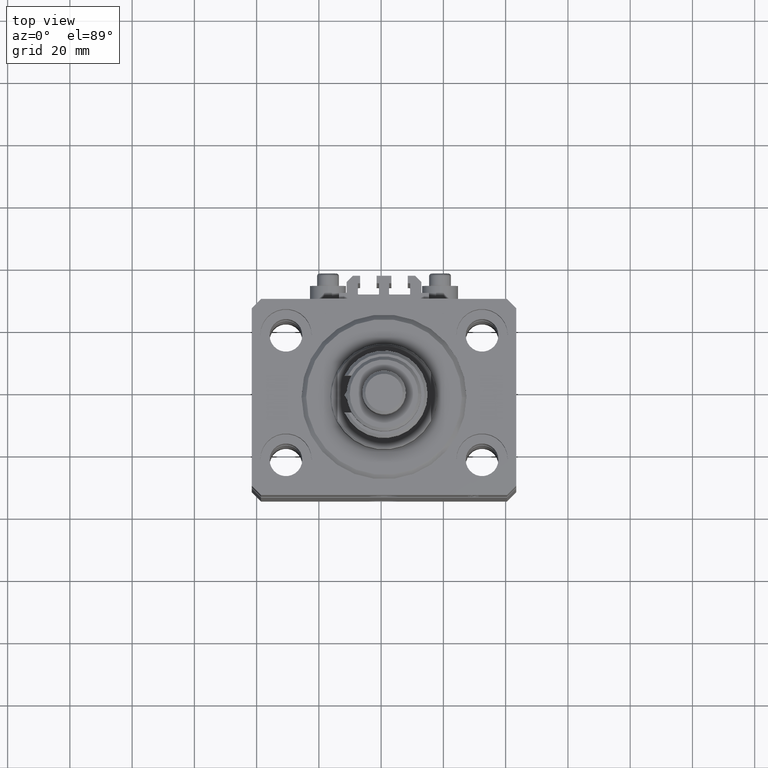
[diagram: clean part render]
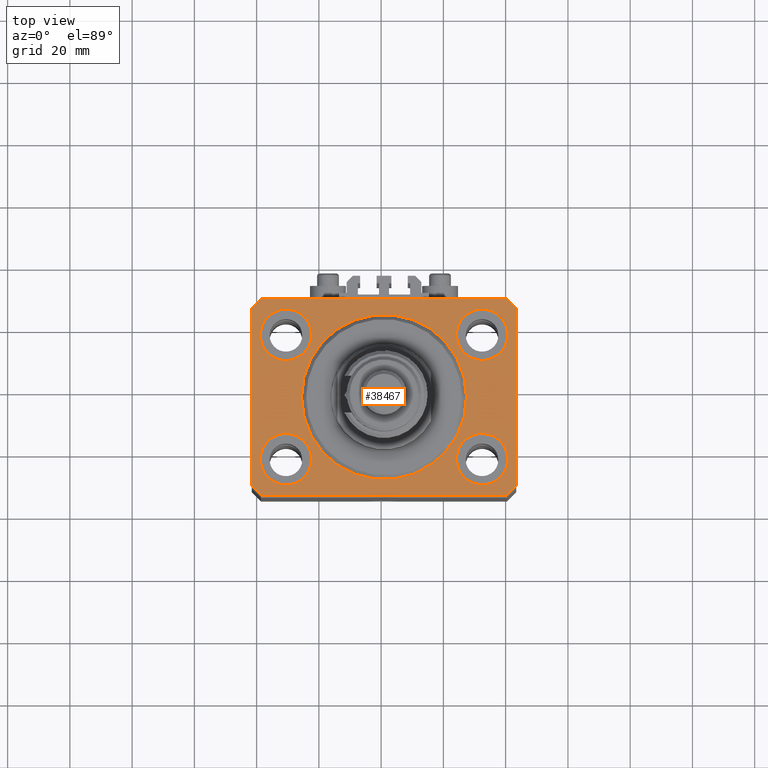
[diagram: same view with one face highlighted and labeled with its STEP entity id]
A machine part, top view. The second image highlights one B-rep face of the part: STEP entity #38467.
In plain terms, the highlighted planar face has unit normal (0, 0, 1).
Its self-contained STEP definition (entity closure, byte-faithful):
#163 = AXIS2_PLACEMENT_3D ( 'NONE', #16894, #17919, #6056 ) ;
#414 = VERTEX_POINT ( 'NONE', #25311 ) ;
#531 = AXIS2_PLACEMENT_3D ( 'NONE', #36931, #28963, #1654 ) ;
#786 = DIRECTION ( 'NONE',  ( -0.7071067811865356934, 0.7071067811865594521, 0.000000000000000000 ) ) ;
#1263 = VERTEX_POINT ( 'NONE', #35939 ) ;
#1654 = DIRECTION ( 'NONE',  ( 1.000000000000000000, 0.000000000000000000, 0.000000000000000000 ) ) ;
#1781 = EDGE_CURVE ( 'NONE', #37832, #1263, #8713, .T. ) ;
#2118 = DIRECTION ( 'NONE',  ( 1.000000000000000000, 0.000000000000000000, 0.000000000000000000 ) ) ;
#2919 = CARTESIAN_POINT ( 'NONE',  ( -31.50000000000000000, -20.00000000000000000, 0.000000000000000000 ) ) ;
#3328 = DIRECTION ( 'NONE',  ( 1.000000000000000000, 0.000000000000000000, 0.000000000000000000 ) ) ;
#3447 = FACE_BOUND ( 'NONE', #23190, .T. ) ;
#3658 = AXIS2_PLACEMENT_3D ( 'NONE', #2919, #42575, #7302 ) ;
#4058 = CARTESIAN_POINT ( 'NONE',  ( -39.75000000000000000, -20.00000000000000000, 0.000000000000000000 ) ) ;
#4536 = CARTESIAN_POINT ( 'NONE',  ( 23.25000000000000355, 20.00000000000001066, 0.000000000000000000 ) ) ;
#4848 = EDGE_CURVE ( 'NONE', #29776, #23181, #41629, .T. ) ;
#4857 = DIRECTION ( 'NONE',  ( 8.886653596232072440E-15, 1.000000000000000000, 0.000000000000000000 ) ) ;
#5062 = VECTOR ( 'NONE', #7144, 1000.000000000000000 ) ;
#5256 = EDGE_CURVE ( 'NONE', #414, #44710, #22698, .T. ) ;
#5568 = EDGE_CURVE ( 'NONE', #11366, #45595, #7118, .T. ) ;
#6056 = DIRECTION ( 'NONE',  ( 1.000000000000000000, 0.000000000000000000, 0.000000000000000000 ) ) ;
#6415 = EDGE_CURVE ( 'NONE', #44710, #414, #49097, .T. ) ;
#6562 = FACE_OUTER_BOUND ( 'NONE', #28540, .T. ) ;
#6627 = LINE ( 'NONE', #9986, #5062 ) ;
#7118 = CIRCLE ( 'NONE', #531, 8.249999999999992895 ) ;
#7144 = DIRECTION ( 'NONE',  ( 0.7071067811865483499, 0.7071067811865466846, 0.000000000000000000 ) ) ;
#7206 = DIRECTION ( 'NONE',  ( 0.000000000000000000, 0.000000000000000000, 1.000000000000000000 ) ) ;
#7302 = DIRECTION ( 'NONE',  ( 1.000000000000000000, 0.000000000000000000, 0.000000000000000000 ) ) ;
#7444 = VERTEX_POINT ( 'NONE', #33965 ) ;
#7478 = CIRCLE ( 'NONE', #18182, 8.250000000000000000 ) ;
#8480 = ORIENTED_EDGE ( 'NONE', *, *, #41681, .T. ) ;
#8674 = VECTOR ( 'NONE', #786, 1000.000000000000114 ) ;
#8713 = LINE ( 'NONE', #43997, #48064 ) ;
#9612 = LINE ( 'NONE', #37923, #19300 ) ;
#9857 = CARTESIAN_POINT ( 'NONE',  ( -39.50000000000000711, 31.50000000000000000, 0.000000000000000000 ) ) ;
#9986 = CARTESIAN_POINT ( 'NONE',  ( 39.50000000000000711, -31.50000000000000000, 0.000000000000000000 ) ) ;
#10422 = FACE_BOUND ( 'NONE', #43550, .T. ) ;
#10889 = AXIS2_PLACEMENT_3D ( 'NONE', #39827, #31844, #16895 ) ;
#11171 = AXIS2_PLACEMENT_3D ( 'NONE', #12039, #39599, #47821 ) ;
#11179 = FACE_BOUND ( 'NONE', #12356, .T. ) ;
#11366 = VERTEX_POINT ( 'NONE', #33105 ) ;
#11921 = VERTEX_POINT ( 'NONE', #4058 ) ;
#11953 = CARTESIAN_POINT ( 'NONE',  ( 42.50000000000000711, -28.50000000000000355, 0.000000000000000000 ) ) ;
#12039 = CARTESIAN_POINT ( 'NONE',  ( 31.50000000000000000, -20.00000000000000000, 0.000000000000000000 ) ) ;
#12356 = EDGE_LOOP ( 'NONE', ( #34864, #29959 ) ) ;
#12640 = CIRCLE ( 'NONE', #41434, 26.50000000000000355 ) ;
#13139 = CARTESIAN_POINT ( 'NONE',  ( 42.50000000000051870, 28.49999999999995381, 0.000000000000000000 ) ) ;
#15307 = FACE_BOUND ( 'NONE', #38079, .T. ) ;
#15613 = VERTEX_POINT ( 'NONE', #9857 ) ;
#15787 = CIRCLE ( 'NONE', #163, 8.249999999999992895 ) ;
#16467 = CARTESIAN_POINT ( 'NONE',  ( 42.50000000000000711, -28.50000000000000355, 0.000000000000000000 ) ) ;
#16702 = DIRECTION ( 'NONE',  ( 1.000000000000000000, 0.000000000000000000, 0.000000000000000000 ) ) ;
#16894 = CARTESIAN_POINT ( 'NONE',  ( 31.50000000000000000, 20.00000000000001066, 0.000000000000000000 ) ) ;
#16895 = DIRECTION ( 'NONE',  ( 1.000000000000000000, 0.000000000000000000, 0.000000000000000000 ) ) ;
#16989 = DIRECTION ( 'NONE',  ( 0.000000000000000000, 0.000000000000000000, 1.000000000000000000 ) ) ;
#17502 = ORIENTED_EDGE ( 'NONE', *, *, #34528, .T. ) ;
#17521 = LINE ( 'NONE', #13139, #8674 ) ;
#17535 = CARTESIAN_POINT ( 'NONE',  ( -42.50000000000000000, -28.50000000000000000, 0.000000000000000000 ) ) ;
#17919 = DIRECTION ( 'NONE',  ( 0.000000000000000000, 0.000000000000000000, 1.000000000000000000 ) ) ;
#18182 = AXIS2_PLACEMENT_3D ( 'NONE', #30662, #18315, #38120 ) ;
#18315 = DIRECTION ( 'NONE',  ( 0.000000000000000000, 0.000000000000000000, 1.000000000000000000 ) ) ;
#18338 = CARTESIAN_POINT ( 'NONE',  ( -39.50000000000000711, -31.50000000000000000, 0.000000000000000000 ) ) ;
#18361 = DIRECTION ( 'NONE',  ( 1.000000000000000000, 0.000000000000000000, 0.000000000000000000 ) ) ;
#18501 = CARTESIAN_POINT ( 'NONE',  ( 23.25000000000000355, -20.00000000000000000, 0.000000000000000000 ) ) ;
#18649 = CARTESIAN_POINT ( 'NONE',  ( 26.50000000000000355, 0.000000000000000000, 0.000000000000000000 ) ) ;
#19300 = VECTOR ( 'NONE', #49269, 1000.000000000000000 ) ;
#19456 = EDGE_CURVE ( 'NONE', #38219, #11921, #7478, .T. ) ;
#19841 = CARTESIAN_POINT ( 'NONE',  ( -31.50000000000000000, 20.00000000000000000, 0.000000000000000000 ) ) ;
#20025 = ORIENTED_EDGE ( 'NONE', *, *, #1781, .T. ) ;
#20112 = VERTEX_POINT ( 'NONE', #49616 ) ;
#21569 = EDGE_CURVE ( 'NONE', #35708, #49094, #22394, .T. ) ;
#21702 = AXIS2_PLACEMENT_3D ( 'NONE', #34109, #42598, #22782 ) ;
#22394 = CIRCLE ( 'NONE', #10889, 26.50000000000000355 ) ;
#22698 = CIRCLE ( 'NONE', #39972, 8.250000000000000000 ) ;
#22782 = DIRECTION ( 'NONE',  ( 1.000000000000000000, 0.000000000000000000, -0.000000000000000000 ) ) ;
#23181 = VERTEX_POINT ( 'NONE', #46620 ) ;
#23190 = EDGE_LOOP ( 'NONE', ( #29995, #43593 ) ) ;
#23780 = EDGE_CURVE ( 'NONE', #11921, #38219, #40649, .T. ) ;
#23935 = CARTESIAN_POINT ( 'NONE',  ( 39.50000000000056843, 31.50000000000000000, 0.000000000000000000 ) ) ;
#24185 = LINE ( 'NONE', #16467, #38961 ) ;
#24995 = ORIENTED_EDGE ( 'NONE', *, *, #38626, .T. ) ;
#25311 = CARTESIAN_POINT ( 'NONE',  ( -39.75000000000000000, 20.00000000000000000, 0.000000000000000000 ) ) ;
#25325 = CARTESIAN_POINT ( 'NONE',  ( -39.50000000000000711, 31.50000000000000000, 0.000000000000000000 ) ) ;
#25350 = CARTESIAN_POINT ( 'NONE',  ( -23.25000000000000000, 20.00000000000000000, 0.000000000000000000 ) ) ;
#26507 = ORIENTED_EDGE ( 'NONE', *, *, #21569, .F. ) ;
#26898 = PLANE ( 'NONE',  #21702 ) ;
#28540 = EDGE_LOOP ( 'NONE', ( #44820, #24995, #47979, #30625, #20025, #17502, #8480, #41189 ) ) ;
#28963 = DIRECTION ( 'NONE',  ( 0.000000000000000000, 0.000000000000000000, 1.000000000000000000 ) ) ;
#29177 = CARTESIAN_POINT ( 'NONE',  ( 31.50000000000000000, 20.00000000000001066, 0.000000000000000000 ) ) ;
#29383 = LINE ( 'NONE', #17535, #43765 ) ;
#29692 = ORIENTED_EDGE ( 'NONE', *, *, #45690, .F. ) ;
#29776 = VERTEX_POINT ( 'NONE', #4536 ) ;
#29941 = CARTESIAN_POINT ( 'NONE',  ( 0.000000000000000000, 0.000000000000000000, 0.000000000000000000 ) ) ;
#29959 = ORIENTED_EDGE ( 'NONE', *, *, #4848, .F. ) ;
#29995 = ORIENTED_EDGE ( 'NONE', *, *, #19456, .F. ) ;
#30079 = CIRCLE ( 'NONE', #11171, 8.249999999999992895 ) ;
#30625 = ORIENTED_EDGE ( 'NONE', *, *, #35038, .T. ) ;
#30662 = CARTESIAN_POINT ( 'NONE',  ( -31.50000000000000000, -20.00000000000000000, 0.000000000000000000 ) ) ;
#31266 = ORIENTED_EDGE ( 'NONE', *, *, #5256, .F. ) ;
#31844 = DIRECTION ( 'NONE',  ( 0.000000000000000000, 0.000000000000000000, 1.000000000000000000 ) ) ;
#32768 = DIRECTION ( 'NONE',  ( 0.000000000000000000, 0.000000000000000000, 1.000000000000000000 ) ) ;
#33105 = CARTESIAN_POINT ( 'NONE',  ( 39.74999999999999289, -20.00000000000000000, 0.000000000000000000 ) ) ;
#33278 = DIRECTION ( 'NONE',  ( -0.7071067811865471286, -0.7071067811865479058, 0.000000000000000000 ) ) ;
#33816 = EDGE_CURVE ( 'NONE', #23181, #29776, #15787, .T. ) ;
#33965 = CARTESIAN_POINT ( 'NONE',  ( 42.50000000000051870, 28.49999999999995381, 0.000000000000000000 ) ) ;
#34109 = CARTESIAN_POINT ( 'NONE',  ( 0.000000000000000000, 0.000000000000000000, 0.000000000000000000 ) ) ;
#34276 = AXIS2_PLACEMENT_3D ( 'NONE', #19841, #16989, #48398 ) ;
#34528 = EDGE_CURVE ( 'NONE', #1263, #47024, #6627, .T. ) ;
#34864 = ORIENTED_EDGE ( 'NONE', *, *, #33816, .F. ) ;
#35038 = EDGE_CURVE ( 'NONE', #35102, #37832, #29383, .T. ) ;
#35102 = VERTEX_POINT ( 'NONE', #45346 ) ;
#35489 = EDGE_LOOP ( 'NONE', ( #38131, #31266 ) ) ;
#35695 = VECTOR ( 'NONE', #42735, 1000.000000000000000 ) ;
#35708 = VERTEX_POINT ( 'NONE', #46487 ) ;
#35939 = CARTESIAN_POINT ( 'NONE',  ( 39.50000000000000711, -31.50000000000000000, 0.000000000000000000 ) ) ;
#36931 = CARTESIAN_POINT ( 'NONE',  ( 31.50000000000000000, -20.00000000000000000, 0.000000000000000000 ) ) ;
#37394 = LINE ( 'NONE', #25325, #38964 ) ;
#37832 = VERTEX_POINT ( 'NONE', #18338 ) ;
#37923 = CARTESIAN_POINT ( 'NONE',  ( -42.50000000000000000, 28.50000000000000000, 0.000000000000000000 ) ) ;
#38079 = EDGE_LOOP ( 'NONE', ( #48915, #26507 ) ) ;
#38120 = DIRECTION ( 'NONE',  ( 1.000000000000000000, 0.000000000000000000, 0.000000000000000000 ) ) ;
#38131 = ORIENTED_EDGE ( 'NONE', *, *, #6415, .F. ) ;
#38219 = VERTEX_POINT ( 'NONE', #39806 ) ;
#38467 = ADVANCED_FACE ( 'NONE', ( #3447, #10422, #11179, #50596, #15307, #6562 ), #26898, .T. ) ;
#38626 = EDGE_CURVE ( 'NONE', #15613, #44772, #37394, .T. ) ;
#38961 = VECTOR ( 'NONE', #4857, 1000.000000000000000 ) ;
#38964 = VECTOR ( 'NONE', #33278, 1000.000000000000000 ) ;
#39118 = LINE ( 'NONE', #23935, #35695 ) ;
#39129 = EDGE_CURVE ( 'NONE', #20112, #15613, #39118, .T. ) ;
#39469 = EDGE_CURVE ( 'NONE', #49094, #35708, #12640, .T. ) ;
#39599 = DIRECTION ( 'NONE',  ( 0.000000000000000000, 0.000000000000000000, 1.000000000000000000 ) ) ;
#39806 = CARTESIAN_POINT ( 'NONE',  ( -23.25000000000000000, -20.00000000000000000, 0.000000000000000000 ) ) ;
#39827 = CARTESIAN_POINT ( 'NONE',  ( 0.000000000000000000, 0.000000000000000000, 0.000000000000000000 ) ) ;
#39972 = AXIS2_PLACEMENT_3D ( 'NONE', #42477, #7206, #3328 ) ;
#40649 = CIRCLE ( 'NONE', #3658, 8.250000000000000000 ) ;
#41189 = ORIENTED_EDGE ( 'NONE', *, *, #50304, .T. ) ;
#41434 = AXIS2_PLACEMENT_3D ( 'NONE', #29941, #49782, #18361 ) ;
#41629 = CIRCLE ( 'NONE', #46560, 8.249999999999992895 ) ;
#41681 = EDGE_CURVE ( 'NONE', #47024, #7444, #24185, .T. ) ;
#42477 = CARTESIAN_POINT ( 'NONE',  ( -31.50000000000000000, 20.00000000000000000, 0.000000000000000000 ) ) ;
#42575 = DIRECTION ( 'NONE',  ( 0.000000000000000000, 0.000000000000000000, 1.000000000000000000 ) ) ;
#42598 = DIRECTION ( 'NONE',  ( 0.000000000000000000, 0.000000000000000000, 1.000000000000000000 ) ) ;
#42735 = DIRECTION ( 'NONE',  ( -1.000000000000000000, 0.000000000000000000, 0.000000000000000000 ) ) ;
#43550 = EDGE_LOOP ( 'NONE', ( #47432, #29692 ) ) ;
#43593 = ORIENTED_EDGE ( 'NONE', *, *, #23780, .F. ) ;
#43765 = VECTOR ( 'NONE', #48696, 1000.000000000000000 ) ;
#43828 = EDGE_CURVE ( 'NONE', #44772, #35102, #9612, .T. ) ;
#43997 = CARTESIAN_POINT ( 'NONE',  ( -39.50000000000000711, -31.50000000000000000, 0.000000000000000000 ) ) ;
#44710 = VERTEX_POINT ( 'NONE', #25350 ) ;
#44772 = VERTEX_POINT ( 'NONE', #45670 ) ;
#44820 = ORIENTED_EDGE ( 'NONE', *, *, #39129, .T. ) ;
#45346 = CARTESIAN_POINT ( 'NONE',  ( -42.50000000000000000, -28.50000000000000000, 0.000000000000000000 ) ) ;
#45595 = VERTEX_POINT ( 'NONE', #18501 ) ;
#45670 = CARTESIAN_POINT ( 'NONE',  ( -42.50000000000000000, 28.50000000000000000, 0.000000000000000000 ) ) ;
#45690 = EDGE_CURVE ( 'NONE', #45595, #11366, #30079, .T. ) ;
#46487 = CARTESIAN_POINT ( 'NONE',  ( -26.50000000000000355, 3.245314017740485765E-15, 0.000000000000000000 ) ) ;
#46560 = AXIS2_PLACEMENT_3D ( 'NONE', #29177, #32768, #2118 ) ;
#46620 = CARTESIAN_POINT ( 'NONE',  ( 39.74999999999999289, 20.00000000000001066, 0.000000000000000000 ) ) ;
#47024 = VERTEX_POINT ( 'NONE', #11953 ) ;
#47432 = ORIENTED_EDGE ( 'NONE', *, *, #5568, .F. ) ;
#47821 = DIRECTION ( 'NONE',  ( 1.000000000000000000, 0.000000000000000000, 0.000000000000000000 ) ) ;
#47979 = ORIENTED_EDGE ( 'NONE', *, *, #43828, .T. ) ;
#48064 = VECTOR ( 'NONE', #16702, 1000.000000000000000 ) ;
#48398 = DIRECTION ( 'NONE',  ( 1.000000000000000000, 0.000000000000000000, 0.000000000000000000 ) ) ;
#48696 = DIRECTION ( 'NONE',  ( 0.7071067811865471286, -0.7071067811865479058, 0.000000000000000000 ) ) ;
#48915 = ORIENTED_EDGE ( 'NONE', *, *, #39469, .F. ) ;
#49094 = VERTEX_POINT ( 'NONE', #18649 ) ;
#49097 = CIRCLE ( 'NONE', #34276, 8.250000000000000000 ) ;
#49269 = DIRECTION ( 'NONE',  ( 0.000000000000000000, -1.000000000000000000, 0.000000000000000000 ) ) ;
#49616 = CARTESIAN_POINT ( 'NONE',  ( 39.50000000000056843, 31.50000000000000000, 0.000000000000000000 ) ) ;
#49782 = DIRECTION ( 'NONE',  ( 0.000000000000000000, 0.000000000000000000, 1.000000000000000000 ) ) ;
#50304 = EDGE_CURVE ( 'NONE', #7444, #20112, #17521, .T. ) ;
#50596 = FACE_BOUND ( 'NONE', #35489, .T. ) ;